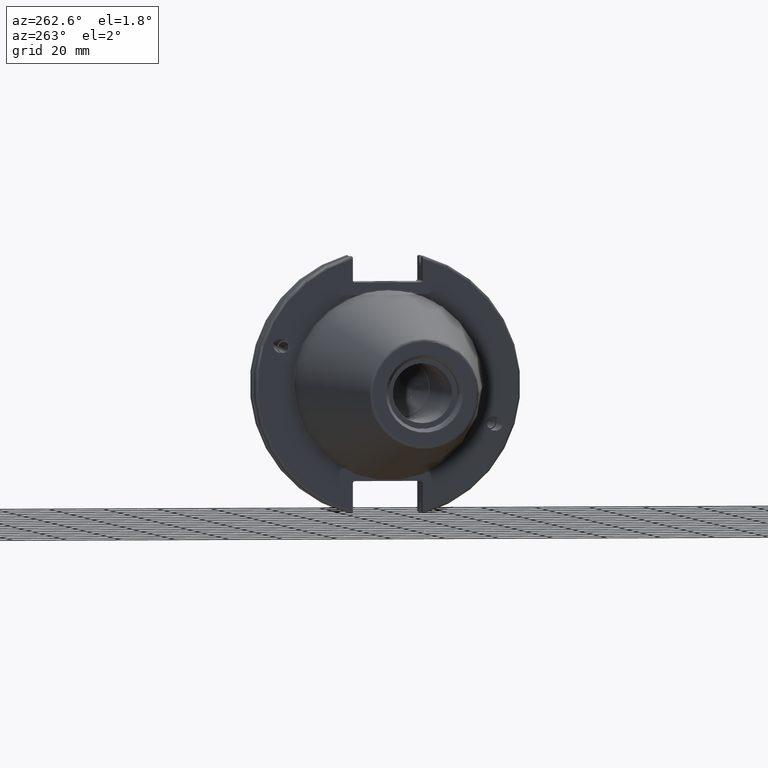
[diagram: clean part render]
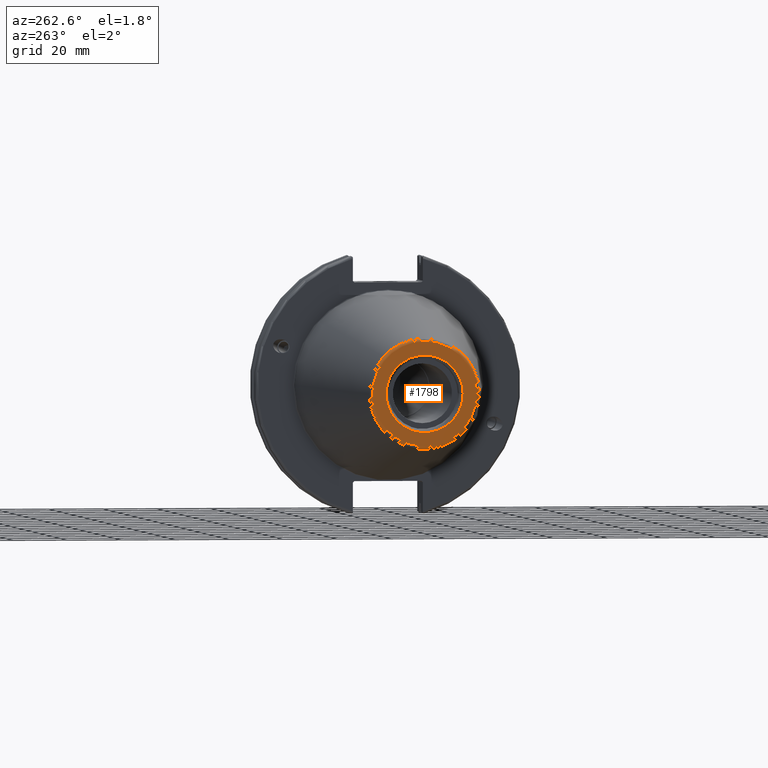
[diagram: same view with one face highlighted and labeled with its STEP entity id]
A machine part, auxiliary view. The second image highlights one B-rep face of the part: STEP entity #1798.
In plain terms, the highlighted planar face has unit normal (-1, 0, 0).
Its self-contained STEP definition (entity closure, byte-faithful):
#127=FACE_BOUND('',#351,.T.);
#157=PLANE('',#2015);
#237=FACE_OUTER_BOUND('',#350,.T.);
#350=EDGE_LOOP('',(#1569,#1570));
#351=EDGE_LOOP('',(#1571,#1572));
#674=CIRCLE('',#2012,19.2435889303637);
#675=CIRCLE('',#2013,19.2435889303637);
#677=CIRCLE('',#2016,14.2875);
#678=CIRCLE('',#2017,14.2875);
#873=VERTEX_POINT('',#3535);
#874=VERTEX_POINT('',#3537);
#875=VERTEX_POINT('',#3542);
#876=VERTEX_POINT('',#3543);
#1124=EDGE_CURVE('',#873,#874,#674,.T.);
#1125=EDGE_CURVE('',#874,#873,#675,.T.);
#1127=EDGE_CURVE('',#875,#876,#677,.T.);
#1128=EDGE_CURVE('',#876,#875,#678,.T.);
#1569=ORIENTED_EDGE('',*,*,#1125,.F.);
#1570=ORIENTED_EDGE('',*,*,#1124,.F.);
#1571=ORIENTED_EDGE('',*,*,#1127,.T.);
#1572=ORIENTED_EDGE('',*,*,#1128,.T.);
#1798=ADVANCED_FACE('',(#237,#127),#157,.T.);
#2012=AXIS2_PLACEMENT_3D('',#3538,#2472,#2473);
#2013=AXIS2_PLACEMENT_3D('',#3539,#2474,#2475);
#2015=AXIS2_PLACEMENT_3D('',#3541,#2478,#2479);
#2016=AXIS2_PLACEMENT_3D('',#3544,#2480,#2481);
#2017=AXIS2_PLACEMENT_3D('',#3545,#2482,#2483);
#2472=DIRECTION('center_axis',(1.,0.,0.));
#2473=DIRECTION('ref_axis',(0.,-1.,1.83697019872103E-16));
#2474=DIRECTION('center_axis',(1.,0.,0.));
#2475=DIRECTION('ref_axis',(0.,-1.,1.83697019872103E-16));
#2478=DIRECTION('center_axis',(-1.,0.,0.));
#2479=DIRECTION('ref_axis',(0.,0.,1.));
#2480=DIRECTION('center_axis',(1.,0.,0.));
#2481=DIRECTION('ref_axis',(0.,0.,-1.));
#2482=DIRECTION('center_axis',(1.,0.,0.));
#2483=DIRECTION('ref_axis',(0.,0.,-1.));
#3535=CARTESIAN_POINT('',(-101.6,-2.35665995876774E-15,19.2435889303637));
#3537=CARTESIAN_POINT('',(-101.6,19.2435889303637,-1.17832997938387E-15));
#3538=CARTESIAN_POINT('Origin',(-101.6,0.,0.));
#3539=CARTESIAN_POINT('Origin',(-101.6,0.,0.));
#3541=CARTESIAN_POINT('Origin',(-101.6,20.1083333333333,0.));
#3542=CARTESIAN_POINT('',(-101.6,14.2875,0.));
#3543=CARTESIAN_POINT('',(-101.6,-14.2875,-1.74971411428178E-15));
#3544=CARTESIAN_POINT('Origin',(-101.6,0.,0.));
#3545=CARTESIAN_POINT('Origin',(-101.6,0.,0.));